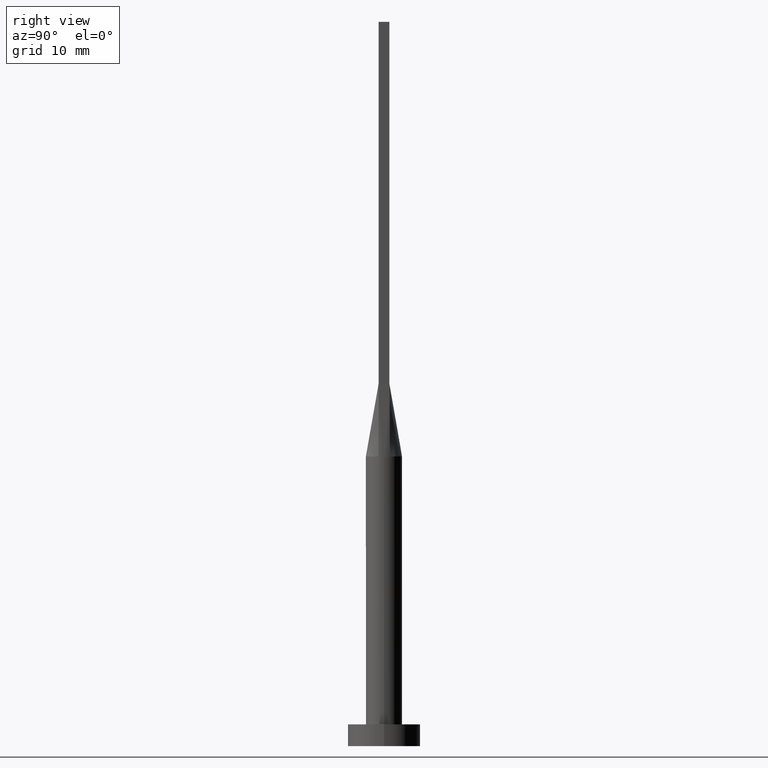
[diagram: clean part render]
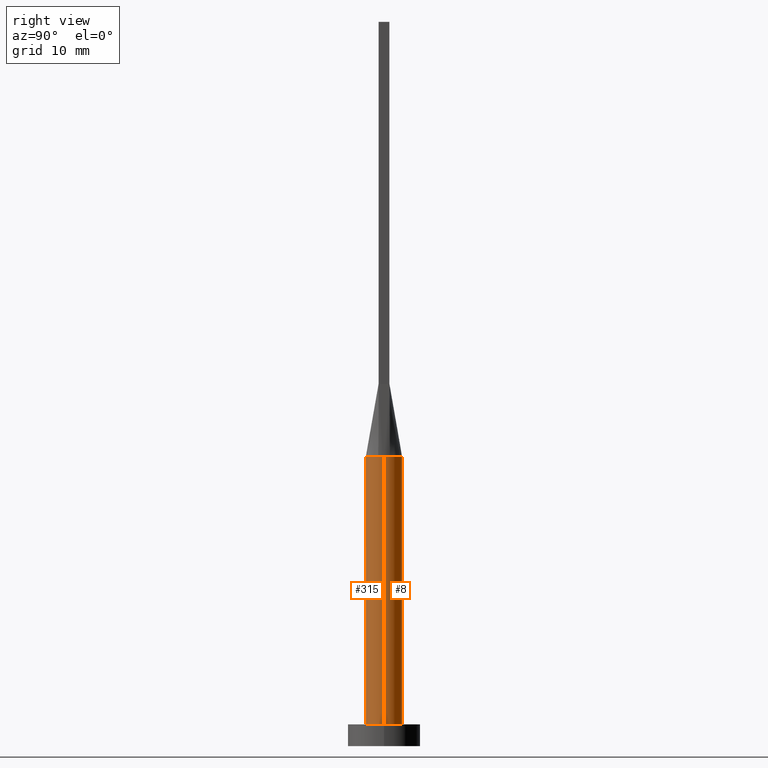
[diagram: same view with one multi-face feature highlighted, each face labeled with its STEP entity id]
A machine part, right view. The highlighted faces form ONE feature: a constant-radius fillet chain: 2 tangent blend faces with common blend radius 2.5 mm. The faces share edges in the B-rep.
Their STEP definitions:
[1] entity #8 (Cylinder):
#2 = EDGE_CURVE ( 'NONE', #378, #394, #535, .T. ) ;
#7 = CARTESIAN_POINT ( 'NONE',  ( 0.000000000000000000, 0.000000000000000000, 40.00000000000000000 ) ) ;
#8 = ADVANCED_FACE ( 'NONE', ( #308 ), #522, .T. ) ;
#13 = CARTESIAN_POINT ( 'NONE',  ( -2.500000000000000444, -1.570839010700814298E-16, 40.00000000000000711 ) ) ;
#16 = VECTOR ( 'NONE', #310, 1000.000000000000000 ) ;
#22 = LINE ( 'NONE', #419, #202 ) ;
#33 = CARTESIAN_POINT ( 'NONE',  ( -1.145194483530141527, 2.241235424885160921, 40.00000000000000000 ) ) ;
#36 = VERTEX_POINT ( 'NONE', #403 ) ;
#39 = EDGE_CURVE ( 'NONE', #155, #212, #474, .T. ) ;
#69 = CARTESIAN_POINT ( 'NONE',  ( -1.799471046981195199, 1.755719709239274229, 39.99999999999998579 ) ) ;
#76 = CARTESIAN_POINT ( 'NONE',  ( -2.218933079238281536, 1.174882007251999871, 40.00000000000001421 ) ) ;
#90 = ORIENTED_EDGE ( 'NONE', *, *, #39, .T. ) ;
#109 = ORIENTED_EDGE ( 'NONE', *, *, #504, .F. ) ;
#114 = AXIS2_PLACEMENT_3D ( 'NONE', #7, #272, #192 ) ;
#118 = CARTESIAN_POINT ( 'NONE',  ( -2.371795432964766359, 0.7905989074952441964, 40.00000000000000000 ) ) ;
#122 = CARTESIAN_POINT ( 'NONE',  ( 2.309208245126284975, 0.9780694150420948807, 39.99999999999999289 ) ) ;
#128 = CARTESIAN_POINT ( 'NONE',  ( -0.3003163416900526128, 2.499999999999999112, 40.00000000000000000 ) ) ;
#155 = VERTEX_POINT ( 'NONE', #579 ) ;
#173 = CARTESIAN_POINT ( 'NONE',  ( 1.964343640889990361, 1.563766543189047287, 40.00000000000000000 ) ) ;
#183 = B_SPLINE_CURVE_WITH_KNOTS ( 'NONE', 3,
 ( #571, #122, #432, #173, #306, #563, #255, #524, #348, #128, #299, #33, #568, #69, #428, #76, #558, #118 ),
 .UNSPECIFIED., .F., .F.,
 ( 4, 2, 2, 2, 2, 2, 2, 2, 4 ),
 ( 0.000000000000000000, 0.1250000000000000000, 0.2500000000000000000, 0.3750000000000000000, 0.5000000000000000000, 0.6250000000000000000, 0.7500000000000000000, 0.8750000000000000000, 1.000000000000000000 ),
 .UNSPECIFIED. ) ;
#192 = DIRECTION ( 'NONE',  ( 1.000000000000000000, 0.000000000000000000, 0.000000000000000000 ) ) ;
#202 = VECTOR ( 'NONE', #291, 1000.000000000000000 ) ;
#210 = AXIS2_PLACEMENT_3D ( 'NONE', #217, #219, #399 ) ;
#211 = CARTESIAN_POINT ( 'NONE',  ( 2.500000000000000000, 3.061616997868383141E-16, 40.00000000000000000 ) ) ;
#212 = VERTEX_POINT ( 'NONE', #230 ) ;
#217 = CARTESIAN_POINT ( 'NONE',  ( 0.000000000000000000, 0.000000000000000000, 3.000000000000000000 ) ) ;
#219 = DIRECTION ( 'NONE',  ( 0.000000000000000000, 0.000000000000000000, 1.000000000000000000 ) ) ;
#230 = CARTESIAN_POINT ( 'NONE',  ( -2.500000000000000000, 0.000000000000000000, 3.000000000000000000 ) ) ;
#244 = ORIENTED_EDGE ( 'NONE', *, *, #2, .F. ) ;
#248 = ORIENTED_EDGE ( 'NONE', *, *, #392, .F. ) ;
#255 = CARTESIAN_POINT ( 'NONE',  ( 1.145194483530141749, 2.241235424885160921, 40.00000000000000000 ) ) ;
#259 = DIRECTION ( 'NONE',  ( 1.000000000000000000, 0.000000000000000000, 0.000000000000000000 ) ) ;
#272 = DIRECTION ( 'NONE',  ( 0.000000000000000000, 0.000000000000000000, 1.000000000000000000 ) ) ;
#291 = DIRECTION ( 'NONE',  ( -0.000000000000000000, -0.000000000000000000, -1.000000000000000000 ) ) ;
#293 = AXIS2_PLACEMENT_3D ( 'NONE', #433, #349, #259 ) ;
#299 = CARTESIAN_POINT ( 'NONE',  ( -0.6000386972366482663, 2.444291348568452094, 40.00000000000000000 ) ) ;
#306 = CARTESIAN_POINT ( 'NONE',  ( 1.799471046981194977, 1.755719709239274007, 40.00000000000000000 ) ) ;
#308 = FACE_OUTER_BOUND ( 'NONE', #552, .T. ) ;
#310 = DIRECTION ( 'NONE',  ( -0.000000000000000000, -0.000000000000000000, -1.000000000000000000 ) ) ;
#334 = CIRCLE ( 'NONE', #114, 2.500000000000000000 ) ;
#348 = CARTESIAN_POINT ( 'NONE',  ( 0.3003163416900527238, 2.499999999999999556, 40.00000000000000000 ) ) ;
#349 = DIRECTION ( 'NONE',  ( 0.000000000000000000, 0.000000000000000000, 1.000000000000000000 ) ) ;
#351 = LINE ( 'NONE', #211, #16 ) ;
#352 = DIRECTION ( 'NONE',  ( -0.000000000000000000, -0.000000000000000000, -1.000000000000000000 ) ) ;
#378 = VERTEX_POINT ( 'NONE', #508 ) ;
#386 = CARTESIAN_POINT ( 'NONE',  ( 2.499999999999999556, 3.110810548879990207E-17, 40.00000000000000711 ) ) ;
#392 = EDGE_CURVE ( 'NONE', #394, #212, #22, .T. ) ;
#394 = VERTEX_POINT ( 'NONE', #13 ) ;
#399 = DIRECTION ( 'NONE',  ( 1.000000000000000000, 0.000000000000000000, 0.000000000000000000 ) ) ;
#403 = CARTESIAN_POINT ( 'NONE',  ( 2.371772892450305648, 0.7905912578404317159, 40.00000000000000000 ) ) ;
#419 = CARTESIAN_POINT ( 'NONE',  ( -2.500000000000000000, 0.000000000000000000, 40.00000000000000000 ) ) ;
#428 = CARTESIAN_POINT ( 'NONE',  ( -1.964343640889990805, 1.563766543189048175, 40.00000000000000711 ) ) ;
#432 = CARTESIAN_POINT ( 'NONE',  ( 2.218933079238281980, 1.174882007252000315, 40.00000000000001421 ) ) ;
#433 = CARTESIAN_POINT ( 'NONE',  ( 0.000000000000000000, 0.000000000000000000, 40.00000000000000000 ) ) ;
#451 = VERTEX_POINT ( 'NONE', #386 ) ;
#474 = CIRCLE ( 'NONE', #210, 2.500000000000000000 ) ;
#483 = AXIS2_PLACEMENT_3D ( 'NONE', #519, #352, #572 ) ;
#489 = EDGE_CURVE ( 'NONE', #451, #155, #351, .T. ) ;
#500 = ORIENTED_EDGE ( 'NONE', *, *, #489, .T. ) ;
#504 = EDGE_CURVE ( 'NONE', #36, #378, #183, .T. ) ;
#508 = CARTESIAN_POINT ( 'NONE',  ( -2.371795432964766359, 0.7905989074952441964, 40.00000000000000000 ) ) ;
#519 = CARTESIAN_POINT ( 'NONE',  ( 0.000000000000000000, 0.000000000000000000, 40.00000000000000000 ) ) ;
#522 = CYLINDRICAL_SURFACE ( 'NONE', #483, 2.500000000000000000 ) ;
#524 = CARTESIAN_POINT ( 'NONE',  ( 0.6000386972366480443, 2.444291348568451649, 40.00000000000000000 ) ) ;
#535 = CIRCLE ( 'NONE', #293, 2.500000000000000000 ) ;
#541 = ORIENTED_EDGE ( 'NONE', *, *, #565, .F. ) ;
#552 = EDGE_LOOP ( 'NONE', ( #541, #500, #90, #248, #244, #109 ) ) ;
#558 = CARTESIAN_POINT ( 'NONE',  ( -2.309208245126284975, 0.9780694150420951027, 40.00000000000000000 ) ) ;
#563 = CARTESIAN_POINT ( 'NONE',  ( 1.390086206340439112, 2.094828891646494995, 40.00000000000000000 ) ) ;
#565 = EDGE_CURVE ( 'NONE', #451, #36, #334, .T. ) ;
#568 = CARTESIAN_POINT ( 'NONE',  ( -1.390086206340438890, 2.094828891646495883, 40.00000000000000000 ) ) ;
#571 = CARTESIAN_POINT ( 'NONE',  ( 2.371772892450305648, 0.7905912578404317159, 40.00000000000000000 ) ) ;
#572 = DIRECTION ( 'NONE',  ( -1.000000000000000000, 0.000000000000000000, 0.000000000000000000 ) ) ;
#579 = CARTESIAN_POINT ( 'NONE',  ( 2.500000000000000000, 3.061616997868383141E-16, 3.000000000000000000 ) ) ;
[2] entity #315 (Cylinder):
#13 = CARTESIAN_POINT ( 'NONE',  ( -2.500000000000000444, -1.570839010700814298E-16, 40.00000000000000711 ) ) ;
#16 = VECTOR ( 'NONE', #310, 1000.000000000000000 ) ;
#22 = LINE ( 'NONE', #419, #202 ) ;
#41 = CARTESIAN_POINT ( 'NONE',  ( -2.371775648085652222, -0.7905922034696525325, 40.00000000000000000 ) ) ;
#47 = AXIS2_PLACEMENT_3D ( 'NONE', #383, #281, #61 ) ;
#48 = DIRECTION ( 'NONE',  ( 0.000000000000000000, 0.000000000000000000, 1.000000000000000000 ) ) ;
#49 = DIRECTION ( 'NONE',  ( 1.000000000000000000, 0.000000000000000000, 0.000000000000000000 ) ) ;
#54 = CARTESIAN_POINT ( 'NONE',  ( 0.000000000000000000, 0.000000000000000000, 40.00000000000000000 ) ) ;
#61 = DIRECTION ( 'NONE',  ( 1.000000000000000000, 0.000000000000000000, 0.000000000000000000 ) ) ;
#63 = CIRCLE ( 'NONE', #47, 2.500000000000000000 ) ;
#72 = AXIS2_PLACEMENT_3D ( 'NONE', #530, #48, #576 ) ;
#97 = DIRECTION ( 'NONE',  ( -1.000000000000000000, 0.000000000000000000, 0.000000000000000000 ) ) ;
#149 = CIRCLE ( 'NONE', #477, 2.500000000000000000 ) ;
#152 = VERTEX_POINT ( 'NONE', #41 ) ;
#153 = EDGE_CURVE ( 'NONE', #394, #152, #397, .T. ) ;
#154 = CYLINDRICAL_SURFACE ( 'NONE', #324, 2.500000000000000000 ) ;
#155 = VERTEX_POINT ( 'NONE', #579 ) ;
#161 = CARTESIAN_POINT ( 'NONE',  ( 0.000000000000000000, 0.000000000000000000, 40.00000000000000000 ) ) ;
#170 = DIRECTION ( 'NONE',  ( 1.000000000000000000, -4.440892098500626162E-15, 0.000000000000000000 ) ) ;
#202 = VECTOR ( 'NONE', #291, 1000.000000000000000 ) ;
#204 = DIRECTION ( 'NONE',  ( -0.000000000000000000, -0.000000000000000000, -1.000000000000000000 ) ) ;
#207 = FACE_OUTER_BOUND ( 'NONE', #343, .T. ) ;
#211 = CARTESIAN_POINT ( 'NONE',  ( 2.500000000000000000, 3.061616997868383141E-16, 40.00000000000000000 ) ) ;
#212 = VERTEX_POINT ( 'NONE', #230 ) ;
#230 = CARTESIAN_POINT ( 'NONE',  ( -2.500000000000000000, 0.000000000000000000, 3.000000000000000000 ) ) ;
#232 = CARTESIAN_POINT ( 'NONE',  ( 2.371798206859841329, -0.7905998626979697796, 40.00000000000000000 ) ) ;
#280 = CARTESIAN_POINT ( 'NONE',  ( 0.000000000000000000, 0.000000000000000000, 3.000000000000000000 ) ) ;
#281 = DIRECTION ( 'NONE',  ( 0.000000000000000000, 0.000000000000000000, 1.000000000000000000 ) ) ;
#291 = DIRECTION ( 'NONE',  ( -0.000000000000000000, -0.000000000000000000, -1.000000000000000000 ) ) ;
#294 = EDGE_CURVE ( 'NONE', #212, #155, #149, .T. ) ;
#297 = VERTEX_POINT ( 'NONE', #232 ) ;
#310 = DIRECTION ( 'NONE',  ( -0.000000000000000000, -0.000000000000000000, -1.000000000000000000 ) ) ;
#315 = ADVANCED_FACE ( 'NONE', ( #207 ), #154, .T. ) ;
#324 = AXIS2_PLACEMENT_3D ( 'NONE', #54, #204, #97 ) ;
#332 = EDGE_CURVE ( 'NONE', #152, #297, #63, .T. ) ;
#339 = ORIENTED_EDGE ( 'NONE', *, *, #511, .F. ) ;
#343 = EDGE_LOOP ( 'NONE', ( #513, #339, #537, #469, #580, #545 ) ) ;
#351 = LINE ( 'NONE', #211, #16 ) ;
#357 = CIRCLE ( 'NONE', #485, 2.500000000000000000 ) ;
#383 = CARTESIAN_POINT ( 'NONE',  ( 0.000000000000000000, 0.000000000000000000, 40.00000000000000000 ) ) ;
#386 = CARTESIAN_POINT ( 'NONE',  ( 2.499999999999999556, 3.110810548879990207E-17, 40.00000000000000711 ) ) ;
#392 = EDGE_CURVE ( 'NONE', #394, #212, #22, .T. ) ;
#394 = VERTEX_POINT ( 'NONE', #13 ) ;
#397 = CIRCLE ( 'NONE', #72, 2.500000000000000000 ) ;
#419 = CARTESIAN_POINT ( 'NONE',  ( -2.500000000000000000, 0.000000000000000000, 40.00000000000000000 ) ) ;
#451 = VERTEX_POINT ( 'NONE', #386 ) ;
#452 = DIRECTION ( 'NONE',  ( 0.000000000000000000, 0.000000000000000000, 1.000000000000000000 ) ) ;
#469 = ORIENTED_EDGE ( 'NONE', *, *, #153, .F. ) ;
#477 = AXIS2_PLACEMENT_3D ( 'NONE', #280, #452, #49 ) ;
#485 = AXIS2_PLACEMENT_3D ( 'NONE', #161, #515, #170 ) ;
#489 = EDGE_CURVE ( 'NONE', #451, #155, #351, .T. ) ;
#511 = EDGE_CURVE ( 'NONE', #297, #451, #357, .T. ) ;
#513 = ORIENTED_EDGE ( 'NONE', *, *, #489, .F. ) ;
#515 = DIRECTION ( 'NONE',  ( 0.000000000000000000, 0.000000000000000000, 1.000000000000000000 ) ) ;
#530 = CARTESIAN_POINT ( 'NONE',  ( 0.000000000000000000, 0.000000000000000000, 40.00000000000000000 ) ) ;
#537 = ORIENTED_EDGE ( 'NONE', *, *, #332, .F. ) ;
#545 = ORIENTED_EDGE ( 'NONE', *, *, #294, .T. ) ;
#576 = DIRECTION ( 'NONE',  ( 1.000000000000000000, 0.000000000000000000, 0.000000000000000000 ) ) ;
#579 = CARTESIAN_POINT ( 'NONE',  ( 2.500000000000000000, 3.061616997868383141E-16, 3.000000000000000000 ) ) ;
#580 = ORIENTED_EDGE ( 'NONE', *, *, #392, .T. ) ;